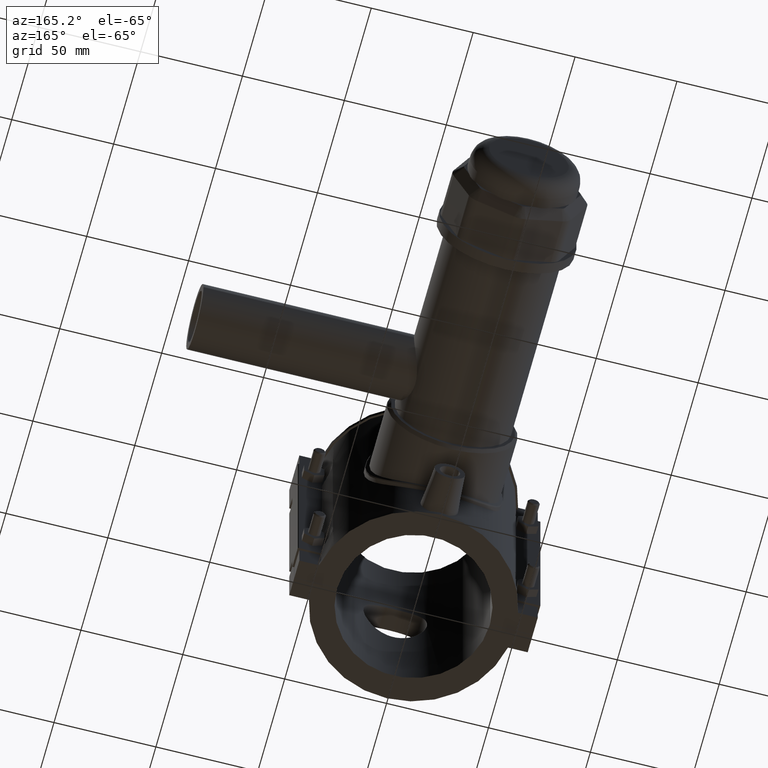
[diagram: clean part render]
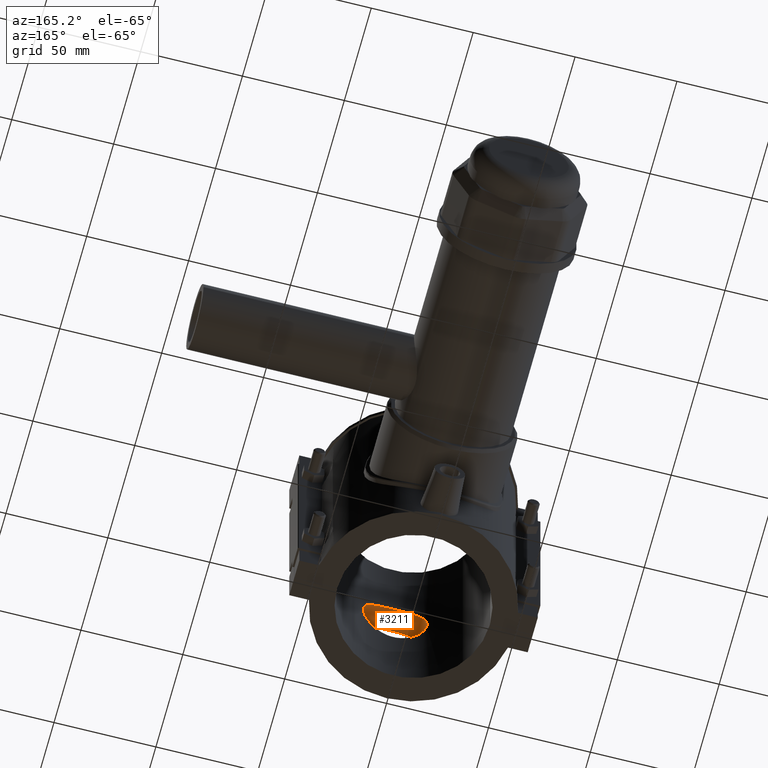
[diagram: same view with one face highlighted and labeled with its STEP entity id]
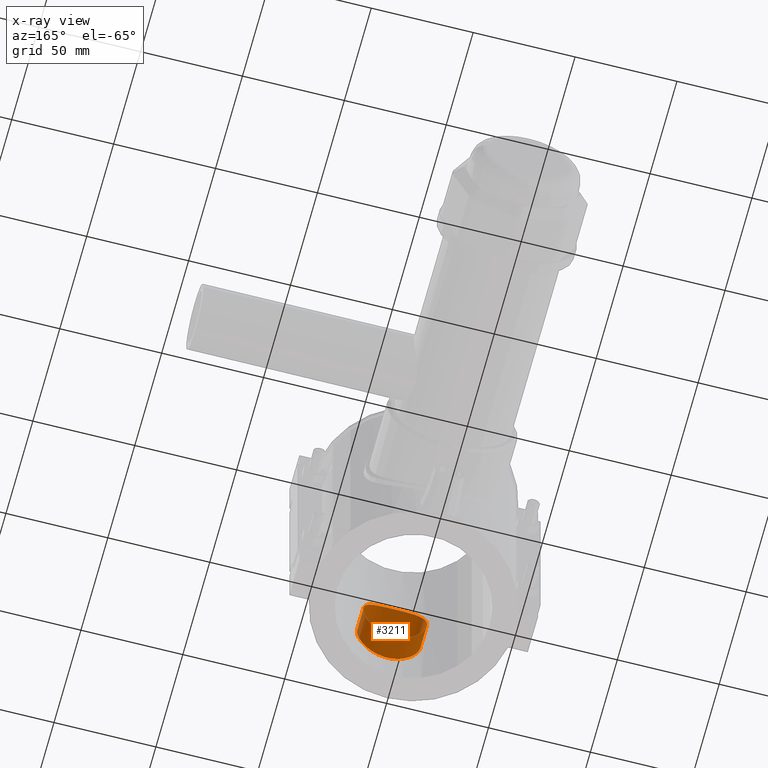
[diagram: x-ray of the same camera — body ghosted, the highlighted face saturated]
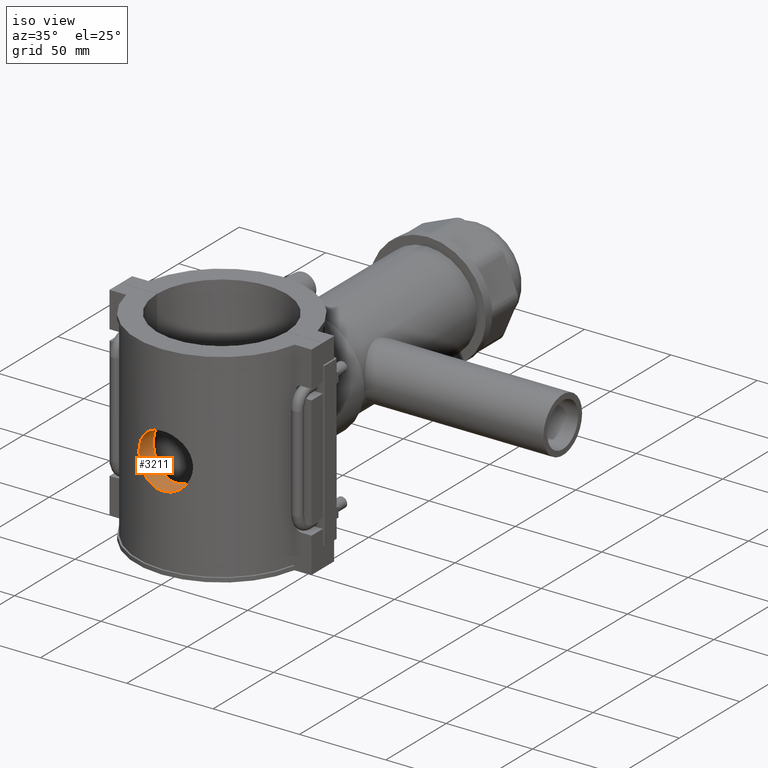
[diagram: same view with one face highlighted and labeled with its STEP entity id]
A machine part, auxiliary view. The second image highlights one B-rep face of the part: STEP entity #3211.
The next image is the same camera in x-ray: the body ghosted, the highlighted face saturated — about 0% of this face is hidden behind the body in this view.
A second angle (iso view) of the same face is appended — the face is thin or edge-on in the first view.
In plain terms, the highlighted cylindrical surface (bore or boss wall) has radius 15.68 mm, axis along (0, -1, 0).
Its self-contained STEP definition (entity closure, byte-faithful):
#637=FACE_BOUND('',#1039,.T.);
#684=B_SPLINE_CURVE_WITH_KNOTS('',3,(#5064,#5065,#5066,#5067,#5068,#5069,
#5070,#5071,#5072,#5073,#5074,#5075,#5076,#5077,#5078,#5079,#5080,#5081,
#5082,#5083,#5084,#5085,#5086,#5087,#5088,#5089,#5090,#5091,#5092,#5093,
#5094,#5095,#5096,#5097,#5098,#5099,#5100,#5101,#5102,#5103,#5104,#5105,
#5106,#5107,#5108,#5109,#5110,#5111,#5112,#5113,#5114,#5115,#5116,#5117,
#5118,#5119,#5120,#5121),.UNSPECIFIED.,.T.,.F.,(4,2,2,2,2,2,2,2,2,2,2,2,
2,2,2,2,2,2,2,2,2,2,2,2,2,2,2,2,4),(0.,0.297681569880699,0.595363139761398,
1.1907262795228,1.48828908378426,1.78585188804573,2.0834146923072,2.38097749656866,
2.67854030083013,2.9761031050916,3.27366590935306,3.57122871361453,4.16659185337593,
4.46427342325663,4.76195499313733,5.05963656301803,5.35731813289873,5.95268127266012,
6.25024407692159,6.54780688118306,6.84536968544452,7.14293248970599,7.44049529396746,
7.73805809822892,8.03562090249039,8.33318370675186,8.92854684651326,9.22622841639395,
9.52390998627465),.UNSPECIFIED.);
#685=B_SPLINE_CURVE_WITH_KNOTS('',3,(#5123,#5124,#5125,#5126,#5127,#5128,
#5129,#5130,#5131,#5132,#5133,#5134,#5135,#5136,#5137,#5138,#5139,#5140,
#5141,#5142,#5143,#5144,#5145,#5146,#5147,#5148,#5149,#5150,#5151,#5152,
#5153,#5154,#5155,#5156,#5157,#5158,#5159,#5160,#5161,#5162,#5163,#5164,
#5165,#5166,#5167,#5168,#5169,#5170,#5171,#5172),.UNSPECIFIED.,.T.,.F.,
(4,2,2,2,2,2,2,2,2,2,2,2,2,2,2,2,2,2,2,2,2,2,2,2,4),(0.,0.299547254524764,
0.599094509049529,1.19818901809906,1.79654837512729,2.09572805364141,2.39490773215552,
2.69408741066964,2.99326708918376,3.59162644621199,4.19072095526152,4.49026820978628,
4.78981546431105,5.08936271883581,5.38890997336058,5.98800448241011,6.58636383943834,
6.88554351795246,7.18472319646657,7.48390287498069,7.78308255349481,8.38144191052304,
8.98053641957257,9.28008367409733,9.5796309286221),.UNSPECIFIED.);
#742=CYLINDRICAL_SURFACE('',#3456,15.68);
#831=FACE_OUTER_BOUND('',#1038,.T.);
#1038=EDGE_LOOP('',(#2338));
#1039=EDGE_LOOP('',(#2339));
#1413=VERTEX_POINT('',#5063);
#1414=VERTEX_POINT('',#5122);
#1763=EDGE_CURVE('',#1413,#1413,#684,.T.);
#1764=EDGE_CURVE('',#1414,#1414,#685,.T.);
#2338=ORIENTED_EDGE('',*,*,#1763,.F.);
#2339=ORIENTED_EDGE('',*,*,#1764,.F.);
#3211=ADVANCED_FACE('',(#831,#637),#742,.F.);
#3456=AXIS2_PLACEMENT_3D('',#5062,#3939,#3940);
#3939=DIRECTION('center_axis',(0.,-1.,0.));
#3940=DIRECTION('ref_axis',(1.,0.,0.));
#5062=CARTESIAN_POINT('Origin',(0.,0.,0.));
#5063=CARTESIAN_POINT('',(15.68,-46.1595071464157,2.77555756156289E-16));
#5064=CARTESIAN_POINT('Ctrl Pts',(15.68,-46.1595071464157,2.77555756156289E-16));
#5065=CARTESIAN_POINT('Ctrl Pts',(15.68,-46.1595071464157,-0.99227189960233));
#5066=CARTESIAN_POINT('Ctrl Pts',(15.5842935405567,-46.1923889652067,-2.01595492010281));
#5067=CARTESIAN_POINT('Ctrl Pts',(15.183935965464,-46.3255339095792,-4.04751381197084));
#5068=CARTESIAN_POINT('Ctrl Pts',(14.8793980157976,-46.4256659242084,-5.05542057384396));
#5069=CARTESIAN_POINT('Ctrl Pts',(13.6761336257904,-46.7999101283691,-7.9492941136592));
#5070=CARTESIAN_POINT('Ctrl Pts',(12.4719648587682,-47.1490623646406,-9.70290379924189));
#5071=CARTESIAN_POINT('Ctrl Pts',(10.3954452562737,-47.6340444123171,-11.7794234017365));
#5072=CARTESIAN_POINT('Ctrl Pts',(9.61334211821111,-47.8006009472574,-12.4299252904814));
#5073=CARTESIAN_POINT('Ctrl Pts',(7.90801523521285,-48.1121304104389,-13.5787585765199));
#5074=CARTESIAN_POINT('Ctrl Pts',(6.98479635704538,-48.2568174339858,-14.0771747075443));
#5075=CARTESIAN_POINT('Ctrl Pts',(5.05513935592339,-48.4969419143082,-14.8795092881687));
#5076=CARTESIAN_POINT('Ctrl Pts',(4.0470360245561,-48.5923849255554,-15.1840649296733));
#5077=CARTESIAN_POINT('Ctrl Pts',(2.01541754302038,-48.7189538625889,-15.5843646165512));
#5078=CARTESIAN_POINT('Ctrl Pts',(0.99187601420489,-48.75,-15.68));
#5079=CARTESIAN_POINT('Ctrl Pts',(-0.991876014204889,-48.75,-15.68));
#5080=CARTESIAN_POINT('Ctrl Pts',(-2.01541754302038,-48.7189538625889,-15.5843646165512));
#5081=CARTESIAN_POINT('Ctrl Pts',(-4.0470360245561,-48.5923849255554,-15.1840649296733));
#5082=CARTESIAN_POINT('Ctrl Pts',(-5.05513935592338,-48.4969419143082,-14.8795092881687));
#5083=CARTESIAN_POINT('Ctrl Pts',(-6.98479635704537,-48.2568174339858,-14.0771747075443));
#5084=CARTESIAN_POINT('Ctrl Pts',(-7.90801523521284,-48.1121304104389,-13.5787585765199));
#5085=CARTESIAN_POINT('Ctrl Pts',(-9.6133421182111,-47.8006009472574,-12.4299252904814));
#5086=CARTESIAN_POINT('Ctrl Pts',(-10.3954452562737,-47.6340444123171,-11.7794234017365));
#5087=CARTESIAN_POINT('Ctrl Pts',(-12.4719648587682,-47.1490623646406,-9.70290379924189));
#5088=CARTESIAN_POINT('Ctrl Pts',(-13.6761336257904,-46.7999101283691,-7.94929411365921));
#5089=CARTESIAN_POINT('Ctrl Pts',(-14.8793980157976,-46.4256659242084,-5.05542057384396));
#5090=CARTESIAN_POINT('Ctrl Pts',(-15.183935965464,-46.3255339095792,-4.04751381197085));
#5091=CARTESIAN_POINT('Ctrl Pts',(-15.5842935405567,-46.1923889652067,-2.01595492010282));
#5092=CARTESIAN_POINT('Ctrl Pts',(-15.68,-46.1595071464157,-0.992271899602333));
#5093=CARTESIAN_POINT('Ctrl Pts',(-15.68,-46.1595071464157,0.99227189960233));
#5094=CARTESIAN_POINT('Ctrl Pts',(-15.5842935405567,-46.1923889652067,2.01595492010281));
#5095=CARTESIAN_POINT('Ctrl Pts',(-15.183935965464,-46.3255339095792,4.04751381197084));
#5096=CARTESIAN_POINT('Ctrl Pts',(-14.8793980157976,-46.4256659242084,5.05542057384396));
#5097=CARTESIAN_POINT('Ctrl Pts',(-13.6761336257904,-46.7999101283691,7.9492941136592));
#5098=CARTESIAN_POINT('Ctrl Pts',(-12.4719648587682,-47.1490623646406,9.70290379924189));
#5099=CARTESIAN_POINT('Ctrl Pts',(-10.3954452562737,-47.6340444123171,11.7794234017365));
#5100=CARTESIAN_POINT('Ctrl Pts',(-9.61334211821111,-47.8006009472574,12.4299252904814));
#5101=CARTESIAN_POINT('Ctrl Pts',(-7.90801523521285,-48.1121304104389,13.5787585765199));
#5102=CARTESIAN_POINT('Ctrl Pts',(-6.98479635704538,-48.2568174339858,14.0771747075443));
#5103=CARTESIAN_POINT('Ctrl Pts',(-5.05513935592339,-48.4969419143082,14.8795092881687));
#5104=CARTESIAN_POINT('Ctrl Pts',(-4.0470360245561,-48.5923849255554,15.1840649296733));
#5105=CARTESIAN_POINT('Ctrl Pts',(-2.01541754302038,-48.7189538625889,15.5843646165512));
#5106=CARTESIAN_POINT('Ctrl Pts',(-0.991876014204891,-48.75,15.68));
#5107=CARTESIAN_POINT('Ctrl Pts',(0.991876014204886,-48.75,15.68));
#5108=CARTESIAN_POINT('Ctrl Pts',(2.01541754302038,-48.7189538625889,15.5843646165512));
#5109=CARTESIAN_POINT('Ctrl Pts',(4.0470360245561,-48.5923849255554,15.1840649296733));
#5110=CARTESIAN_POINT('Ctrl Pts',(5.05513935592338,-48.4969419143082,14.8795092881687));
#5111=CARTESIAN_POINT('Ctrl Pts',(6.98479635704537,-48.2568174339858,14.0771747075443));
#5112=CARTESIAN_POINT('Ctrl Pts',(7.90801523521284,-48.1121304104389,13.5787585765199));
#5113=CARTESIAN_POINT('Ctrl Pts',(9.6133421182111,-47.8006009472574,12.4299252904814));
#5114=CARTESIAN_POINT('Ctrl Pts',(10.3954452562737,-47.6340444123171,11.7794234017365));
#5115=CARTESIAN_POINT('Ctrl Pts',(12.4719648587682,-47.1490623646406,9.70290379924189));
#5116=CARTESIAN_POINT('Ctrl Pts',(13.6761336257904,-46.7999101283691,7.9492941136592));
#5117=CARTESIAN_POINT('Ctrl Pts',(14.8793980157976,-46.4256659242084,5.05542057384396));
#5118=CARTESIAN_POINT('Ctrl Pts',(15.183935965464,-46.3255339095792,4.04751381197085));
#5119=CARTESIAN_POINT('Ctrl Pts',(15.5842935405567,-46.1923889652067,2.01595492010282));
#5120=CARTESIAN_POINT('Ctrl Pts',(15.68,-46.1595071464157,0.992271899602332));
#5121=CARTESIAN_POINT('Ctrl Pts',(15.68,-46.1595071464157,-5.55111512312578E-16));
#5122=CARTESIAN_POINT('',(15.68,-34.0644624205344,2.77555756156289E-16));
#5123=CARTESIAN_POINT('Ctrl Pts',(15.68,-34.0644624205344,2.77555756156289E-16));
#5124=CARTESIAN_POINT('Ctrl Pts',(15.68,-34.0644624205344,0.998490848415882));
#5125=CARTESIAN_POINT('Ctrl Pts',(15.5831011624236,-34.1096141683476,2.02643798632721));
#5126=CARTESIAN_POINT('Ctrl Pts',(15.1800789465681,-34.290873765451,4.0625972066846));
#5127=CARTESIAN_POINT('Ctrl Pts',(14.8740929602538,-34.426748854588,5.07085719461247));
#5128=CARTESIAN_POINT('Ctrl Pts',(13.6687982971368,-34.9309687655682,7.96151961593171));
#5129=CARTESIAN_POINT('Ctrl Pts',(12.4668654938752,-35.3965022327982,9.70800316413492));
#5130=CARTESIAN_POINT('Ctrl Pts',(9.70969587136855,-36.2498523789565,12.4651727866416));
#5131=CARTESIAN_POINT('Ctrl Pts',(7.96258238703524,-36.69693022547,13.6683829729896));
#5132=CARTESIAN_POINT('Ctrl Pts',(5.07004604558383,-37.1685214245768,14.8744172709557));
#5133=CARTESIAN_POINT('Ctrl Pts',(4.06116752603988,-37.2934376871613,15.1804675677752));
#5134=CARTESIAN_POINT('Ctrl Pts',(2.02479372190801,-37.459228323413,15.58332081546));
#5135=CARTESIAN_POINT('Ctrl Pts',(0.997265595047056,-37.5,15.68));
#5136=CARTESIAN_POINT('Ctrl Pts',(-0.997265595047054,-37.5,15.68));
#5137=CARTESIAN_POINT('Ctrl Pts',(-2.02479372190801,-37.459228323413,15.58332081546));
#5138=CARTESIAN_POINT('Ctrl Pts',(-4.06116752603988,-37.2934376871613,15.1804675677752));
#5139=CARTESIAN_POINT('Ctrl Pts',(-5.07004604558383,-37.1685214245768,14.8744172709557));
#5140=CARTESIAN_POINT('Ctrl Pts',(-7.96258238703524,-36.69693022547,13.6683829729896));
#5141=CARTESIAN_POINT('Ctrl Pts',(-9.70969587136855,-36.2498523789565,12.4651727866416));
#5142=CARTESIAN_POINT('Ctrl Pts',(-12.4668654938752,-35.3965022327982,9.70800316413493));
#5143=CARTESIAN_POINT('Ctrl Pts',(-13.6687982971368,-34.9309687655682,7.96151961593172));
#5144=CARTESIAN_POINT('Ctrl Pts',(-14.8740929602538,-34.426748854588,5.07085719461248));
#5145=CARTESIAN_POINT('Ctrl Pts',(-15.1800789465681,-34.290873765451,4.0625972066846));
#5146=CARTESIAN_POINT('Ctrl Pts',(-15.5831011624236,-34.1096141683476,2.02643798632721));
#5147=CARTESIAN_POINT('Ctrl Pts',(-15.68,-34.0644624205344,0.998490848415884));
#5148=CARTESIAN_POINT('Ctrl Pts',(-15.68,-34.0644624205344,-0.998490848415884));
#5149=CARTESIAN_POINT('Ctrl Pts',(-15.5831011624236,-34.1096141683476,-2.02643798632721));
#5150=CARTESIAN_POINT('Ctrl Pts',(-15.1800789465681,-34.290873765451,-4.0625972066846));
#5151=CARTESIAN_POINT('Ctrl Pts',(-14.8740929602538,-34.426748854588,-5.07085719461248));
#5152=CARTESIAN_POINT('Ctrl Pts',(-13.6687982971368,-34.9309687655682,-7.96151961593172));
#5153=CARTESIAN_POINT('Ctrl Pts',(-12.4668654938752,-35.3965022327982,-9.70800316413492));
#5154=CARTESIAN_POINT('Ctrl Pts',(-9.70969587136855,-36.2498523789565,-12.4651727866416));
#5155=CARTESIAN_POINT('Ctrl Pts',(-7.96258238703525,-36.69693022547,-13.6683829729896));
#5156=CARTESIAN_POINT('Ctrl Pts',(-5.07004604558384,-37.1685214245768,-14.8744172709557));
#5157=CARTESIAN_POINT('Ctrl Pts',(-4.06116752603988,-37.2934376871613,-15.1804675677752));
#5158=CARTESIAN_POINT('Ctrl Pts',(-2.02479372190801,-37.459228323413,-15.58332081546));
#5159=CARTESIAN_POINT('Ctrl Pts',(-0.997265595047058,-37.5,-15.68));
#5160=CARTESIAN_POINT('Ctrl Pts',(0.997265595047053,-37.5,-15.68));
#5161=CARTESIAN_POINT('Ctrl Pts',(2.02479372190801,-37.459228323413,-15.58332081546));
#5162=CARTESIAN_POINT('Ctrl Pts',(4.06116752603988,-37.2934376871613,-15.1804675677752));
#5163=CARTESIAN_POINT('Ctrl Pts',(5.07004604558383,-37.1685214245768,-14.8744172709557));
#5164=CARTESIAN_POINT('Ctrl Pts',(7.96258238703524,-36.69693022547,-13.6683829729896));
#5165=CARTESIAN_POINT('Ctrl Pts',(9.70969587136855,-36.2498523789565,-12.4651727866416));
#5166=CARTESIAN_POINT('Ctrl Pts',(12.4668654938752,-35.3965022327982,-9.70800316413492));
#5167=CARTESIAN_POINT('Ctrl Pts',(13.6687982971368,-34.9309687655682,-7.96151961593171));
#5168=CARTESIAN_POINT('Ctrl Pts',(14.8740929602538,-34.426748854588,-5.07085719461247));
#5169=CARTESIAN_POINT('Ctrl Pts',(15.1800789465681,-34.290873765451,-4.06259720668459));
#5170=CARTESIAN_POINT('Ctrl Pts',(15.5831011624236,-34.1096141683476,-2.02643798632721));
#5171=CARTESIAN_POINT('Ctrl Pts',(15.68,-34.0644624205344,-0.99849084841588));
#5172=CARTESIAN_POINT('Ctrl Pts',(15.68,-34.0644624205344,5.55111512312578E-16));